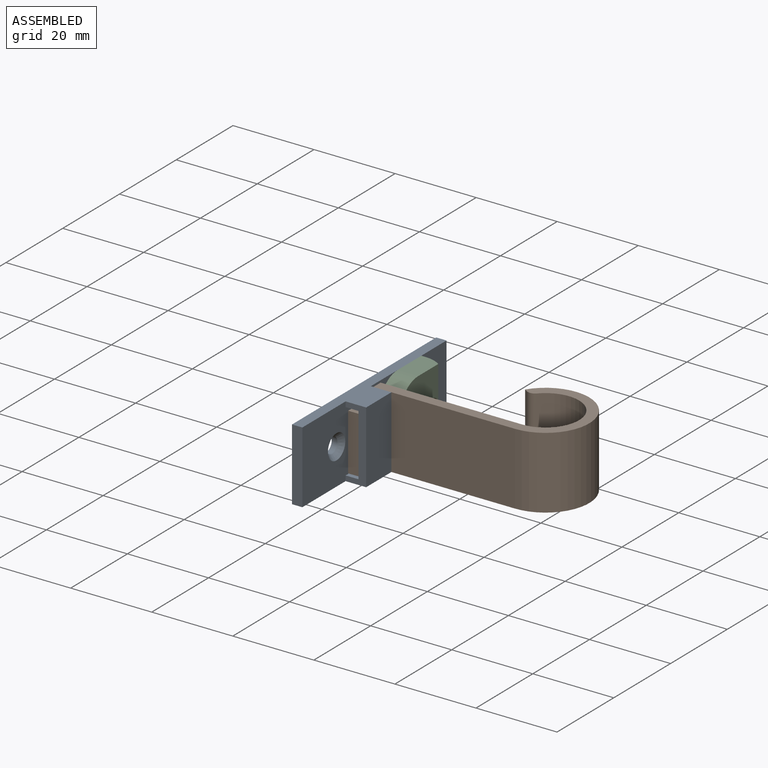
[diagram: assembled view]
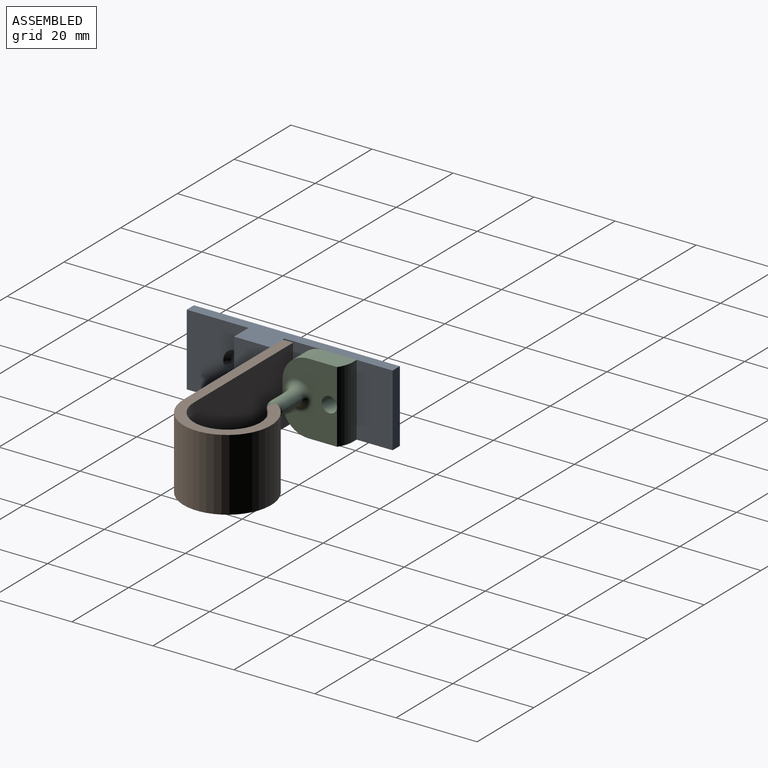
[diagram: assembled view, second angle]
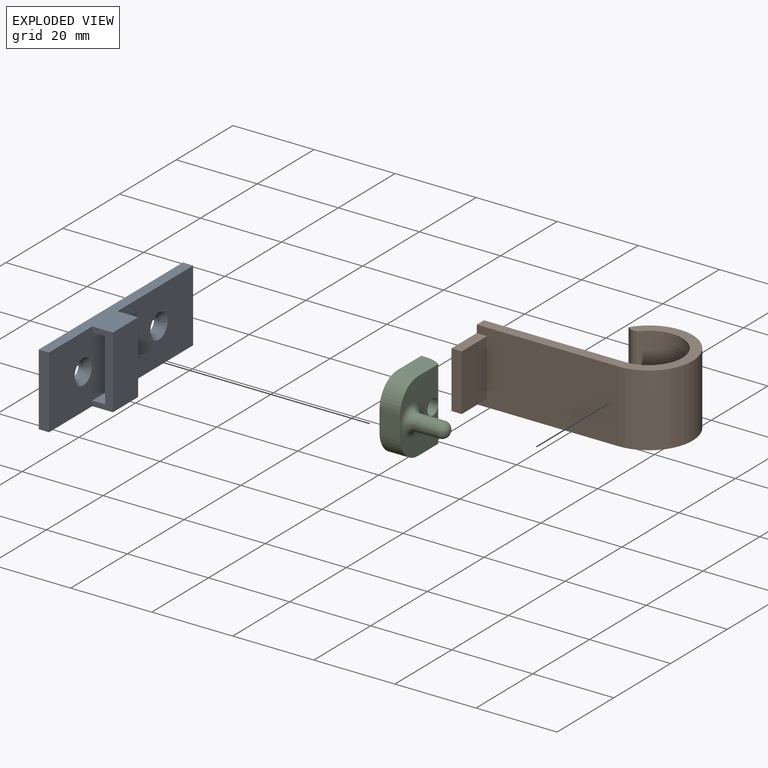
[diagram: exploded view]
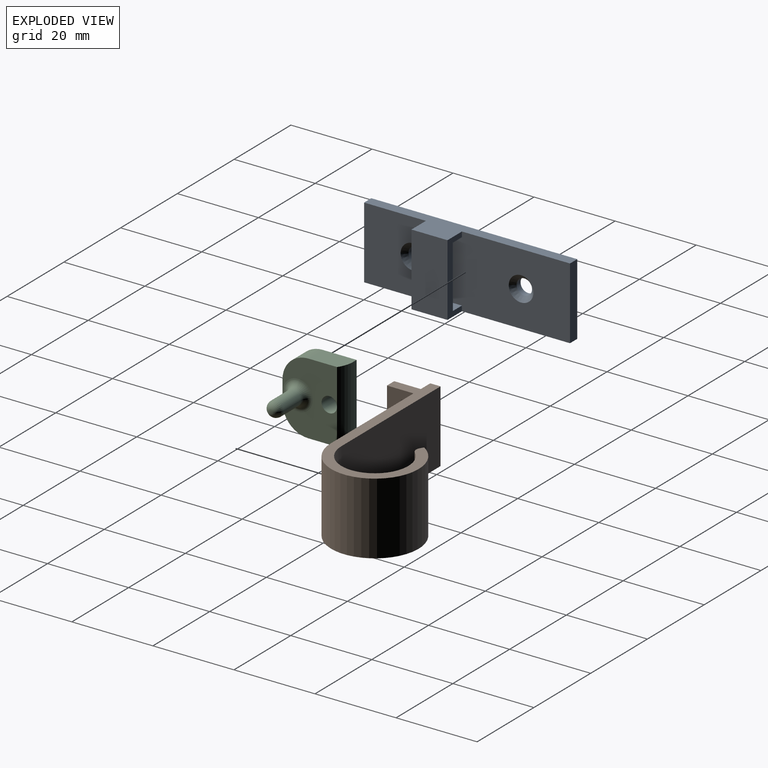
[diagram: exploded view, second angle]
ASSEMBLY  parts=3 mates=2
PART A: 18 faces, bbox 7.6x50.8x17.8 mm
  f0: plane 24.13x17.78mm, normal (1,0,0), area 377.3mm2, adj f1,f2,f4,f9,f10,f12,f14,f16
  f1: plane 50.8x7.62mm, normal (0,0,1), area 174.2mm2, adj f0,f3,f4,f5,f6,f9,f13,f14
  f2: plane 50.8x7.62mm, normal (0,0,-1), area 174.2mm2, adj f0,f3,f4,f5,f6,f9,f13,f14
  f3: plane 50.8x17.78mm, normal (-1,0,0), area 880.4mm2, adj f1,f2,f4,f6,f7,f8
  f4: plane 17.78x2.54mm, normal (0,-1,0), area 45.2mm2, adj f0,f1,f2,f3
  f5: plane 24.13x17.78mm, normal (1,0,0), area 399.8mm2, adj f1,f2,f6,f9,f17
  f6: plane 17.78x2.54mm, normal (0,1,0), area 45.2mm2, adj f1,f2,f3,f5
  f7: cylinder r=1.91mm len=3.81mm, axis (1,0,0), area 16.7mm2, adj f3,f17
  f8: cylinder r=1.91mm len=3.81mm, axis (1,0,0), area 16.7mm2, adj f3,f16
  f9: plane 17.78x2.54mm, normal (1,0,0), area 45.2mm2, adj f0,f1,f2,f5,f15
  f10: plane 8.89x3.18mm, normal (0,0,-1), area 28.2mm2, adj f0,f11,f14,f15
  f11: plane 15.24x8.89mm, normal (-1,0,0), area 135.5mm2, adj f10,f12,f14,f15
  f12: plane 8.89x3.18mm, normal (0,0,1), area 28.2mm2, adj f0,f11,f14,f15
  f13: plane 17.78x8.89mm, normal (1,0,0), area 158.1mm2, adj f1,f2,f14,f15
  f14: plane 17.78x5.08mm, normal (0,-1,0), area 41.9mm2, adj f0,f1,f2,f10,f11,f12,f13
  f15: plane 17.78x5.08mm, normal (0,1,0), area 41.9mm2, adj f1,f2,f9,f10,f11,f12,f13
  f16: cone r=1.91mm half-angle=45deg, axis (1,0,0), area 25.2mm2, adj f0,f8
  f17: cone r=1.91mm half-angle=45deg, axis (1,0,0), area 25.2mm2, adj f5,f7
PART B: 13 faces, bbox 45.7x30.5x17.8 mm
  f0: plane 34.93x17.78mm, normal (0,-1,0), area 585.5mm2, adj f1,f4,f5,f7,f8,f9,f10
  f1: cylinder r=10.8mm len=21.6mm, axis (0,0,-1), area 795.8mm2, adj f0,f2,f4,f5
  f2: plane 17.78x0.78mm, normal (-0.54,-0.84,0), area 16.4mm2, adj f1,f4,f5,f12
  f3: cylinder r=8.26mm len=17.78mm, axis (0,0,-1), area 582.5mm2, adj f4,f5,f6,f12
  f4: plane 45.72x21.6mm, normal (0,0,1), area 188.5mm2, adj f0,f1,f2,f3,f6,f7,f12
  f5: plane 45.72x21.6mm, normal (0,0,-1), area 188.5mm2, adj f0,f1,f2,f3,f6,f7,f12
  f6: plane 34.93x17.78mm, normal (0,1,0), area 621mm2, adj f3,f4,f5,f7
  f7: plane 17.78x11.43mm, normal (-1,0,0), area 169.4mm2, adj f0,f4,f5,f6,f8,f9,f11
  f8: plane 8.89x2.54mm, normal (0,0,1), area 22.6mm2, adj f0,f7,f10,f11
  f9: plane 8.89x2.54mm, normal (0,0,-1), area 22.6mm2, adj f0,f7,f10,f11
  f10: plane 13.97x8.89mm, normal (1,0,0), area 124.2mm2, adj f0,f8,f9,f11
  f11: plane 13.97x2.54mm, normal (0,-1,0), area 35.5mm2, adj f7,f8,f9,f10
  f12: cylinder r=1.78mm len=17.78mm, axis (0,0,-1), area 44mm2, adj f2,f3,f4,f5
PART C: 14 faces, bbox 14.6x16.3x17.8 mm
  f0: plane 8.38x5.08mm, normal (0,0,1), area 41mm2, adj f4,f5,f6,f7,f9
  f1: plane 5.08x5.08mm, normal (0,-1,0), area 25.8mm2, adj f5,f6,f7,f8
  f2: plane 8.38x5.08mm, normal (0,0,-1), area 41mm2, adj f4,f5,f6,f8,f9
  f3: cylinder r=1.91mm len=5.08mm, axis (-1,0,0), area 60.8mm2, adj f5,f6
  f4: plane 17.78x1.1mm, normal (0,1,0), area 19.6mm2, adj f0,f2,f6,f9
  f5: plane 17.78x13.46mm, normal (1,0,0), area 168mm2, adj f0,f1,f2,f3,f7,f8,f9,f12
  f6: plane 17.78x14.73mm, normal (-1,0,0), area 233.2mm2, adj f0,f1,f2,f3,f4,f7,f8
  f7: cylinder r=6.35mm len=6.35mm, axis (1,0,0), area 50.7mm2, adj f0,f1,f5,f6
  f8: cylinder r=6.35mm len=6.35mm, axis (-1,0,0), area 50.7mm2, adj f1,f2,f5,f6
  f9: cylinder r=6.86mm len=17.78mm, axis (0,0,1), area 75.4mm2, adj f0,f2,f4,f5
  f10: cylinder r=1.91mm len=5.97mm, axis (-1,0,0), area 71.4mm2, adj f12,f13
  f11: plane 0.25x0.25mm, normal (1,0,0), area 0.1mm2, adj f13
  f12: torus R=3.68mm, axis (1,0,0), area 44.8mm2, adj f5,f10
  f13: torus R=0.13mm, axis (1,0,0), area 22.1mm2, adj f10,f11
PLACE A t=(27.53,2,-16)mm
PLACE B t=(13.09,2,-16)mm
PLACE C t=(-2.47,2,-16)mm
MATE fastened C.f3 <-> A.f17  axis (-1,0,0) through (-2.47,15.34,-7.11)mm
MATE fastened B.f0 <-> A.f15  axis (0,-1,0) through (0.7,0.73,-7.11)mm
